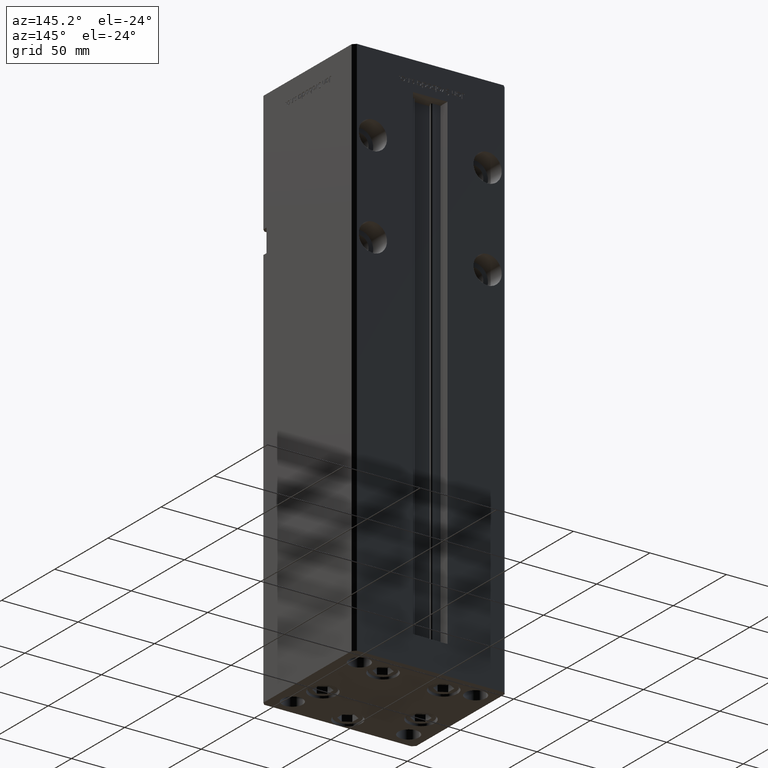
[diagram: clean part render]
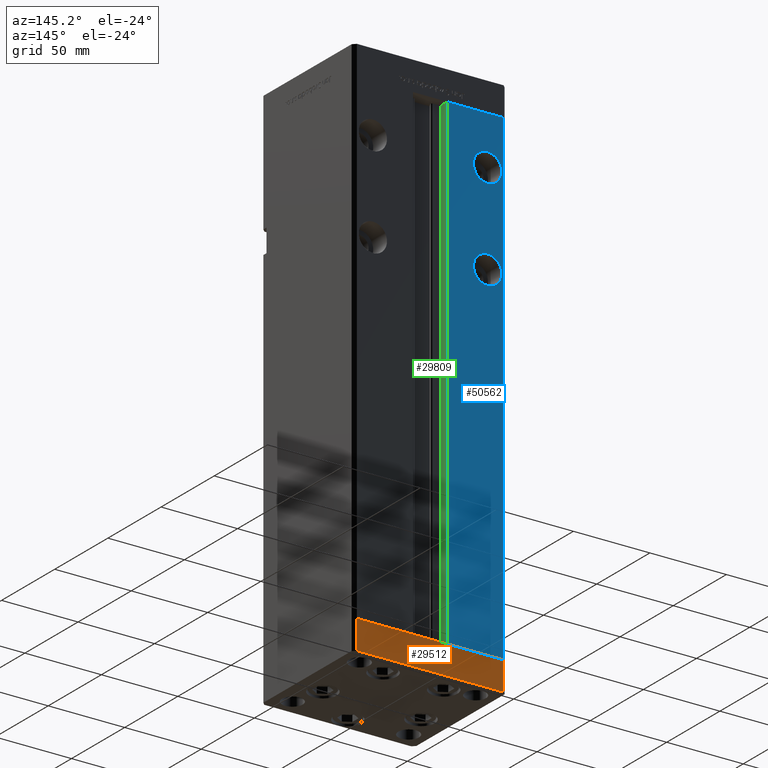
[diagram: same view with three faces highlighted in distinct colors, each labeled with its STEP entity id]
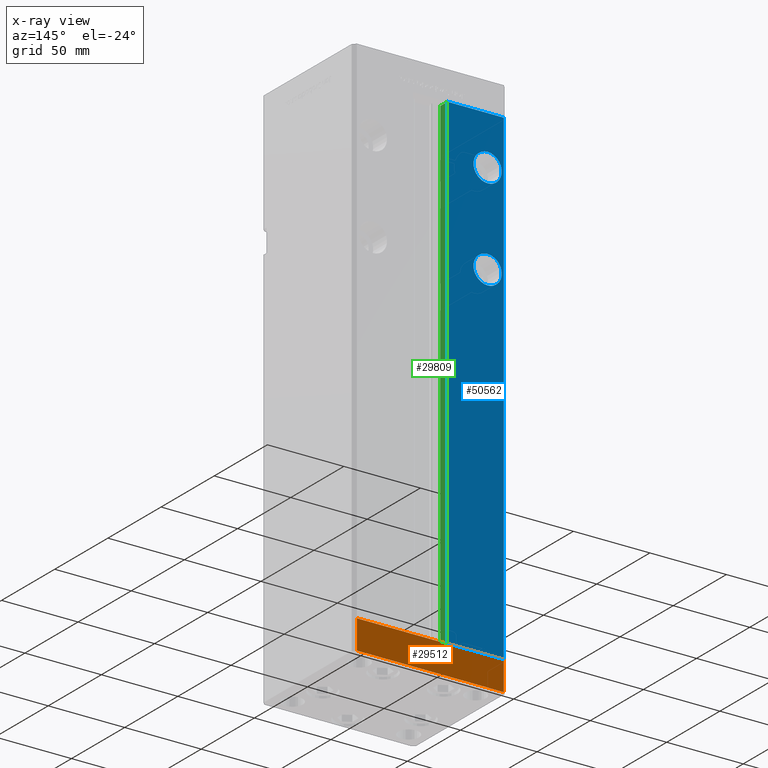
[diagram: x-ray of the same camera — body ghosted, the three highlighted faces saturated]
A machine part, auxiliary view with three faces highlighted in distinct colors.
The next image is the same camera in x-ray (body ghosted, the three faces saturated) — at least one of them is partly hidden behind the body in this view.
Their STEP definitions:

[orange] entity #29512 — the highlighted planar face has unit normal (-0, 1, 0).
#923 = EDGE_CURVE ( 'NONE', #45310, #19056, #45352, .T. ) ;
#3677 = CARTESIAN_POINT ( 'NONE',  ( 47.99999999999990763, 43.50000000000000000, -19.00000000000000000 ) ) ;
#3908 = DIRECTION ( 'NONE',  ( -1.000000000000000000, -3.614007241618350743E-16, 0.000000000000000000 ) ) ;
#6486 = EDGE_CURVE ( 'NONE', #12937, #45310, #38821, .T. ) ;
#7016 = EDGE_LOOP ( 'NONE', ( #36588, #28620, #37583, #7562 ) ) ;
#7562 = ORIENTED_EDGE ( 'NONE', *, *, #41404, .T. ) ;
#7569 = CARTESIAN_POINT ( 'NONE',  ( -48.00000000000000711, 43.49999999999996447, -19.00000000000000000 ) ) ;
#9999 = CARTESIAN_POINT ( 'NONE',  ( 47.99999999999990763, 43.50000000000000000, -19.00000000000000000 ) ) ;
#12937 = VERTEX_POINT ( 'NONE', #33300 ) ;
#14790 = LINE ( 'NONE', #27709, #26254 ) ;
#15106 = CARTESIAN_POINT ( 'NONE',  ( -48.00000000000000711, 43.49999999999996447, -19.00000000000000000 ) ) ;
#15317 = DIRECTION ( 'NONE',  ( -1.000000000000000000, -3.614007241618350743E-16, 0.000000000000000000 ) ) ;
#19056 = VERTEX_POINT ( 'NONE', #34669 ) ;
#26254 = VECTOR ( 'NONE', #15317, 1000.000000000000000 ) ;
#27709 = CARTESIAN_POINT ( 'NONE',  ( 47.99999999999990763, 43.50000000000000000, -19.00000000000000000 ) ) ;
#28620 = ORIENTED_EDGE ( 'NONE', *, *, #6486, .F. ) ;
#29512 = ADVANCED_FACE ( 'NONE', ( #36239 ), #40558, .T. ) ;
#29711 = VECTOR ( 'NONE', #31518, 1000.000000000000000 ) ;
#31518 = DIRECTION ( 'NONE',  ( 0.000000000000000000, 0.000000000000000000, 1.000000000000000000 ) ) ;
#33300 = CARTESIAN_POINT ( 'NONE',  ( 47.99999999999990763, 43.50000000000000000, -19.00000000000000000 ) ) ;
#34669 = CARTESIAN_POINT ( 'NONE',  ( -48.00000000000000711, 43.49999999999996447, 0.000000000000000000 ) ) ;
#36239 = FACE_OUTER_BOUND ( 'NONE', #7016, .T. ) ;
#36510 = DIRECTION ( 'NONE',  ( -1.000000000000000000, -3.614007241618350743E-16, 0.000000000000000000 ) ) ;
#36588 = ORIENTED_EDGE ( 'NONE', *, *, #923, .F. ) ;
#36809 = VERTEX_POINT ( 'NONE', #7569 ) ;
#37583 = ORIENTED_EDGE ( 'NONE', *, *, #44089, .T. ) ;
#37821 = VECTOR ( 'NONE', #3908, 1000.000000000000000 ) ;
#38821 = LINE ( 'NONE', #9999, #49197 ) ;
#40558 = PLANE ( 'NONE',  #50045 ) ;
#41404 = EDGE_CURVE ( 'NONE', #36809, #19056, #52265, .T. ) ;
#42333 = DIRECTION ( 'NONE',  ( 0.000000000000000000, 0.000000000000000000, 1.000000000000000000 ) ) ;
#42708 = CARTESIAN_POINT ( 'NONE',  ( 47.99999999999990763, 43.50000000000000000, 0.000000000000000000 ) ) ;
#44089 = EDGE_CURVE ( 'NONE', #12937, #36809, #14790, .T. ) ;
#45119 = DIRECTION ( 'NONE',  ( -3.614007241618350743E-16, 1.000000000000000000, 0.000000000000000000 ) ) ;
#45310 = VERTEX_POINT ( 'NONE', #42708 ) ;
#45352 = LINE ( 'NONE', #49910, #37821 ) ;
#49197 = VECTOR ( 'NONE', #42333, 1000.000000000000000 ) ;
#49910 = CARTESIAN_POINT ( 'NONE',  ( 47.99999999999990763, 43.50000000000000000, 0.000000000000000000 ) ) ;
#50045 = AXIS2_PLACEMENT_3D ( 'NONE', #3677, #45119, #36510 ) ;
#52265 = LINE ( 'NONE', #15106, #29711 ) ;

[blue] entity #50562 — the highlighted planar face has unit normal (0, -1, 0).
#103 = CIRCLE ( 'NONE', #47387, 9.250000000000008882 ) ;
#137 = DIRECTION ( 'NONE',  ( 0.000000000000000000, 0.000000000000000000, -1.000000000000000000 ) ) ;
#588 = CARTESIAN_POINT ( 'NONE',  ( -48.00000000000000711, 43.50000000000000000, 318.5000000000000000 ) ) ;
#1427 = CARTESIAN_POINT ( 'NONE',  ( -11.24999999999999645, 43.50000000000000000, 0.000000000000000000 ) ) ;
#1752 = VECTOR ( 'NONE', #14365, 1000.000000000000000 ) ;
#2609 = AXIS2_PLACEMENT_3D ( 'NONE', #40566, #24897, #53186 ) ;
#3134 = DIRECTION ( 'NONE',  ( 0.000000000000000000, 0.000000000000000000, 1.000000000000000000 ) ) ;
#3497 = CIRCLE ( 'NONE', #2609, 9.249999999999980460 ) ;
#6692 = EDGE_CURVE ( 'NONE', #28101, #29500, #36285, .T. ) ;
#7204 = ORIENTED_EDGE ( 'NONE', *, *, #50095, .F. ) ;
#8842 = EDGE_LOOP ( 'NONE', ( #49075, #7204 ) ) ;
#11147 = EDGE_LOOP ( 'NONE', ( #49865, #26189, #35782, #18417 ) ) ;
#11556 = EDGE_CURVE ( 'NONE', #25873, #25302, #40601, .T. ) ;
#14365 = DIRECTION ( 'NONE',  ( 1.000000000000000000, 0.000000000000000000, 0.000000000000000000 ) ) ;
#15009 = LINE ( 'NONE', #30888, #18314 ) ;
#15614 = DIRECTION ( 'NONE',  ( 0.000000000000000000, -0.000000000000000000, -1.000000000000000000 ) ) ;
#16059 = ORIENTED_EDGE ( 'NONE', *, *, #22654, .F. ) ;
#16324 = CARTESIAN_POINT ( 'NONE',  ( -37.50000000000000000, 43.50000000000000000, 235.7500000000000284 ) ) ;
#18314 = VECTOR ( 'NONE', #26861, 1000.000000000000000 ) ;
#18417 = ORIENTED_EDGE ( 'NONE', *, *, #32311, .F. ) ;
#20060 = DIRECTION ( 'NONE',  ( 0.000000000000000000, 1.000000000000000000, 0.000000000000000000 ) ) ;
#21154 = VERTEX_POINT ( 'NONE', #49652 ) ;
#22654 = EDGE_CURVE ( 'NONE', #29500, #28101, #103, .T. ) ;
#22992 = DIRECTION ( 'NONE',  ( -1.000000000000000000, 0.000000000000000000, 0.000000000000000000 ) ) ;
#23203 = AXIS2_PLACEMENT_3D ( 'NONE', #23693, #24747, #15614 ) ;
#23693 = CARTESIAN_POINT ( 'NONE',  ( -11.24999999999999645, 43.50000000000000000, 318.5000000000000000 ) ) ;
#24223 = FACE_BOUND ( 'NONE', #8842, .T. ) ;
#24231 = AXIS2_PLACEMENT_3D ( 'NONE', #33481, #41593, #137 ) ;
#24747 = DIRECTION ( 'NONE',  ( 0.000000000000000000, -1.000000000000000000, 0.000000000000000000 ) ) ;
#24897 = DIRECTION ( 'NONE',  ( 0.000000000000000000, 1.000000000000000000, -0.000000000000000000 ) ) ;
#25302 = VERTEX_POINT ( 'NONE', #51146 ) ;
#25544 = CARTESIAN_POINT ( 'NONE',  ( -37.50000000000000000, 43.50000000000000000, 226.5000000000000000 ) ) ;
#25873 = VERTEX_POINT ( 'NONE', #38056 ) ;
#26189 = ORIENTED_EDGE ( 'NONE', *, *, #42651, .F. ) ;
#26861 = DIRECTION ( 'NONE',  ( -0.000000000000000000, -0.000000000000000000, -1.000000000000000000 ) ) ;
#28101 = VERTEX_POINT ( 'NONE', #16324 ) ;
#29500 = VERTEX_POINT ( 'NONE', #53180 ) ;
#29920 = LINE ( 'NONE', #1427, #46002 ) ;
#30888 = CARTESIAN_POINT ( 'NONE',  ( -48.00000000000000711, 43.50000000000000000, 318.5000000000000000 ) ) ;
#31578 = CARTESIAN_POINT ( 'NONE',  ( -11.24999999999999645, 43.50000000000000000, 318.5000000000000000 ) ) ;
#31756 = PLANE ( 'NONE',  #23203 ) ;
#32311 = EDGE_CURVE ( 'NONE', #42976, #48939, #15009, .T. ) ;
#33481 = CARTESIAN_POINT ( 'NONE',  ( -37.50000000000000000, 43.50000000000000000, 286.5000000000000000 ) ) ;
#35782 = ORIENTED_EDGE ( 'NONE', *, *, #47658, .T. ) ;
#36285 = CIRCLE ( 'NONE', #46611, 9.250000000000008882 ) ;
#36505 = CARTESIAN_POINT ( 'NONE',  ( -37.50000000000000000, 43.50000000000000000, 226.5000000000000000 ) ) ;
#38056 = CARTESIAN_POINT ( 'NONE',  ( -37.50000000000000000, 43.50000000000000000, 295.7499999999999432 ) ) ;
#39544 = CARTESIAN_POINT ( 'NONE',  ( -48.00000000000000711, 43.50000000000000000, 0.000000000000000000 ) ) ;
#40566 = CARTESIAN_POINT ( 'NONE',  ( -37.50000000000000000, 43.50000000000000000, 286.5000000000000000 ) ) ;
#40601 = CIRCLE ( 'NONE', #24231, 9.249999999999980460 ) ;
#40687 = FACE_OUTER_BOUND ( 'NONE', #11147, .T. ) ;
#41201 = FACE_BOUND ( 'NONE', #53213, .T. ) ;
#41593 = DIRECTION ( 'NONE',  ( 0.000000000000000000, 1.000000000000000000, -0.000000000000000000 ) ) ;
#41854 = VECTOR ( 'NONE', #22992, 1000.000000000000000 ) ;
#42000 = DIRECTION ( 'NONE',  ( 0.000000000000000000, 1.000000000000000000, 0.000000000000000000 ) ) ;
#42651 = EDGE_CURVE ( 'NONE', #21154, #50698, #29920, .T. ) ;
#42976 = VERTEX_POINT ( 'NONE', #588 ) ;
#46002 = VECTOR ( 'NONE', #50667, 1000.000000000000000 ) ;
#46611 = AXIS2_PLACEMENT_3D ( 'NONE', #25544, #42000, #49798 ) ;
#47243 = CARTESIAN_POINT ( 'NONE',  ( -11.24999999999999645, 43.50000000000000000, 0.000000000000000000 ) ) ;
#47387 = AXIS2_PLACEMENT_3D ( 'NONE', #36505, #20060, #3134 ) ;
#47658 = EDGE_CURVE ( 'NONE', #21154, #48939, #51286, .T. ) ;
#48939 = VERTEX_POINT ( 'NONE', #39544 ) ;
#49075 = ORIENTED_EDGE ( 'NONE', *, *, #11556, .F. ) ;
#49652 = CARTESIAN_POINT ( 'NONE',  ( -11.24999999999999645, 43.50000000000000000, 0.000000000000000000 ) ) ;
#49798 = DIRECTION ( 'NONE',  ( 0.000000000000000000, 0.000000000000000000, 1.000000000000000000 ) ) ;
#49865 = ORIENTED_EDGE ( 'NONE', *, *, #50265, .T. ) ;
#50095 = EDGE_CURVE ( 'NONE', #25302, #25873, #3497, .T. ) ;
#50265 = EDGE_CURVE ( 'NONE', #42976, #50698, #52325, .T. ) ;
#50562 = ADVANCED_FACE ( 'NONE', ( #24223, #41201, #40687 ), #31756, .F. ) ;
#50667 = DIRECTION ( 'NONE',  ( -0.000000000000000000, -0.000000000000000000, 1.000000000000000000 ) ) ;
#50698 = VERTEX_POINT ( 'NONE', #51925 ) ;
#51146 = CARTESIAN_POINT ( 'NONE',  ( -37.50000000000000000, 43.50000000000000000, 277.2500000000000000 ) ) ;
#51201 = ORIENTED_EDGE ( 'NONE', *, *, #6692, .F. ) ;
#51286 = LINE ( 'NONE', #47243, #41854 ) ;
#51925 = CARTESIAN_POINT ( 'NONE',  ( -11.24999999999999645, 43.50000000000000000, 318.5000000000000000 ) ) ;
#52325 = LINE ( 'NONE', #31578, #1752 ) ;
#53180 = CARTESIAN_POINT ( 'NONE',  ( -37.50000000000000000, 43.50000000000000000, 217.2500000000000000 ) ) ;
#53186 = DIRECTION ( 'NONE',  ( 0.000000000000000000, 0.000000000000000000, -1.000000000000000000 ) ) ;
#53213 = EDGE_LOOP ( 'NONE', ( #51201, #16059 ) ) ;

[green] entity #29809 — the highlighted planar face has unit normal (-1, 0, 0).
#522 = LINE ( 'NONE', #46516, #51175 ) ;
#904 = DIRECTION ( 'NONE',  ( 0.000000000000000000, 1.000000000000000000, 0.000000000000000000 ) ) ;
#1427 = CARTESIAN_POINT ( 'NONE',  ( -11.24999999999999645, 43.50000000000000000, 0.000000000000000000 ) ) ;
#3194 = EDGE_LOOP ( 'NONE', ( #14635, #3240, #29031, #5409 ) ) ;
#3240 = ORIENTED_EDGE ( 'NONE', *, *, #43241, .F. ) ;
#5409 = ORIENTED_EDGE ( 'NONE', *, *, #42666, .F. ) ;
#9010 = VERTEX_POINT ( 'NONE', #53069 ) ;
#11654 = EDGE_CURVE ( 'NONE', #9010, #41226, #14865, .T. ) ;
#14635 = ORIENTED_EDGE ( 'NONE', *, *, #11654, .F. ) ;
#14782 = AXIS2_PLACEMENT_3D ( 'NONE', #35899, #52318, #15418 ) ;
#14865 = LINE ( 'NONE', #17833, #44049 ) ;
#15418 = DIRECTION ( 'NONE',  ( 0.000000000000000000, 0.000000000000000000, 1.000000000000000000 ) ) ;
#17833 = CARTESIAN_POINT ( 'NONE',  ( -11.24999999999999645, 37.00000000000000000, 0.000000000000000000 ) ) ;
#18096 = DIRECTION ( 'NONE',  ( -0.000000000000000000, -0.000000000000000000, 1.000000000000000000 ) ) ;
#19724 = PLANE ( 'NONE',  #14782 ) ;
#20948 = DIRECTION ( 'NONE',  ( -0.000000000000000000, -1.000000000000000000, -0.000000000000000000 ) ) ;
#21154 = VERTEX_POINT ( 'NONE', #49652 ) ;
#29031 = ORIENTED_EDGE ( 'NONE', *, *, #42651, .T. ) ;
#29634 = VECTOR ( 'NONE', #904, 1000.000000000000000 ) ;
#29809 = ADVANCED_FACE ( 'NONE', ( #45319 ), #19724, .F. ) ;
#29920 = LINE ( 'NONE', #1427, #46002 ) ;
#33458 = LINE ( 'NONE', #37784, #29634 ) ;
#35899 = CARTESIAN_POINT ( 'NONE',  ( -11.24999999999999645, 37.00000000000000000, 0.000000000000000000 ) ) ;
#37784 = CARTESIAN_POINT ( 'NONE',  ( -11.24999999999999645, 0.000000000000000000, 318.5000000000000000 ) ) ;
#41226 = VERTEX_POINT ( 'NONE', #42349 ) ;
#42349 = CARTESIAN_POINT ( 'NONE',  ( -11.24999999999999645, 37.00000000000000000, 318.5000000000000000 ) ) ;
#42651 = EDGE_CURVE ( 'NONE', #21154, #50698, #29920, .T. ) ;
#42666 = EDGE_CURVE ( 'NONE', #41226, #50698, #33458, .T. ) ;
#43241 = EDGE_CURVE ( 'NONE', #21154, #9010, #522, .T. ) ;
#44049 = VECTOR ( 'NONE', #18096, 1000.000000000000000 ) ;
#45319 = FACE_OUTER_BOUND ( 'NONE', #3194, .T. ) ;
#46002 = VECTOR ( 'NONE', #50667, 1000.000000000000000 ) ;
#46516 = CARTESIAN_POINT ( 'NONE',  ( -11.24999999999999645, 37.00000000000000000, 0.000000000000000000 ) ) ;
#49652 = CARTESIAN_POINT ( 'NONE',  ( -11.24999999999999645, 43.50000000000000000, 0.000000000000000000 ) ) ;
#50667 = DIRECTION ( 'NONE',  ( -0.000000000000000000, -0.000000000000000000, 1.000000000000000000 ) ) ;
#50698 = VERTEX_POINT ( 'NONE', #51925 ) ;
#51175 = VECTOR ( 'NONE', #20948, 1000.000000000000000 ) ;
#51925 = CARTESIAN_POINT ( 'NONE',  ( -11.24999999999999645, 43.50000000000000000, 318.5000000000000000 ) ) ;
#52318 = DIRECTION ( 'NONE',  ( -1.000000000000000000, 0.000000000000000000, 0.000000000000000000 ) ) ;
#53069 = CARTESIAN_POINT ( 'NONE',  ( -11.24999999999999645, 37.00000000000000000, 0.000000000000000000 ) ) ;